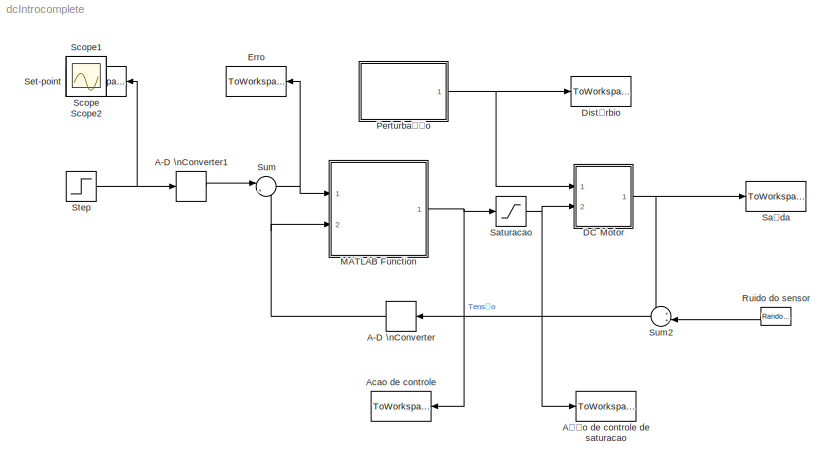
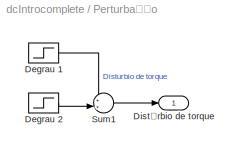
MODEL dcIntrocomplete
KIND model
CONFIG PreLoadFcn = % Motor Parameters\n\nJ=0.01;     %kg*m^2\nb=0.1;      %N*m/(rad/s)\nK=0.01;     %V/(rad/s)\nR=1;        %Ohm\nL=0.5;      %H
BLOCK [ZeroOrderHold] A-D \nConverter
  SID = 30
  SampleTime = 0.02
BLOCK [ZeroOrderHold] A-D \nConverter1
  SID = 41
  SampleTime = 0.02
BLOCK [ToWorkspace] Acao de controle
  FixptAsFi = on
  MaxDataPoints = inf
  Ports = [1]
  SID = 44
  SampleTime = -1
  Save2DSignal = 3-D array (concatenate along third dimension)
  SaveFormat = Structure With Time
  VariableName = u
BLOCK [ToWorkspace] Ação de controle de saturacao
  FixptAsFi = on
  MaxDataPoints = inf
  Ports = [1]
  SID = 38
  SampleTime = -1
  Save2DSignal = 3-D array (concatenate along third dimension)
  SaveFormat = Structure With Time
  VariableName = usat
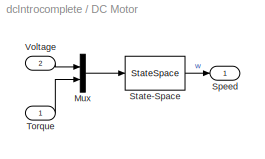
BLOCK [SubSystem] DC Motor
  Ports = [2, 1]
  RequestExecContextInheritance = off
  SID = 2
BLOCK [Mux] DC Motor/Mux
  DisplayOption = bar
  Inputs = 2
  Ports = [2, 1]
  SID = 5
BLOCK [Outport] DC Motor/Speed
  IconDisplay = Port number
  SID = 7
BLOCK [StateSpace] DC Motor/State-Space
  A = [-b/J K/J; -K/L -R/L]
  B = [0 -1/J; 1/L 0]
  C = [1 0]
  D = [0 0]
  Ports = [1, 1]
  SID = 6
  X0 = 0
BLOCK [Inport] DC Motor/Torque
  IconDisplay = Port number
  SID = 4
BLOCK [Inport] DC Motor/Voltage
  IconDisplay = Port number
  Port = 2
  SID = 3
BLOCK [ToWorkspace] Distúrbio
  FixptAsFi = on
  MaxDataPoints = inf
  Ports = [1]
  SID = 40
  SampleTime = -1
  Save2DSignal = 3-D array (concatenate along third dimension)
  SaveFormat = Structure With Time
  VariableName = d
BLOCK [ToWorkspace] Erro
  FixptAsFi = on
  MaxDataPoints = inf
  Ports = [1]
  SID = 39
  SampleTime = -1
  Save2DSignal = 3-D array (concatenate along third dimension)
  SaveFormat = Structure With Time
  VariableName = e
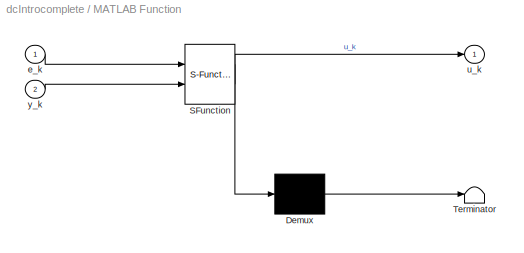
BLOCK [SubSystem] MATLAB Function
  ErrorFcn = Stateflow.Translate.translate
  PermitHierarchicalResolution = ExplicitOnly
  Ports = [2, 1]
  RequestExecContextInheritance = off
  SFBlockType = MATLAB Function
  SID = 34
  TreatAsAtomicUnit = on
BLOCK [Demux] MATLAB Function/ Demux 
  Outputs = 1
  Ports = [1, 1]
  SID = 34::17
BLOCK [S-Function] MATLAB Function/ SFunction 
  EnableBusSupport = on
  FunctionName = sf_sfun
  Parameters = params
  PortCounts = [2 2]
  Ports = [2, 2]
  SID = 34::16
  Tag = Stateflow S-Function dcIntrocomplete 2
BLOCK [Terminator] MATLAB Function/ Terminator 
  SID = 34::18
BLOCK [Inport] MATLAB Function/e_k
  IconDisplay = Port number
  SID = 34::1
BLOCK [Outport] MATLAB Function/u_k
  IconDisplay = Port number
  SID = 34::5
BLOCK [Inport] MATLAB Function/y_k
  IconDisplay = Port number
  Port = 2
  SID = 34::20
BLOCK [SubSystem] Perturbação
  Ports = [0, 1]
  RequestExecContextInheritance = off
  SID = 45
BLOCK [Step] Perturbação/Degrau 1
  After = dist_val
  SID = 12
  SampleTime = Ts
  Time = t0_dist
BLOCK [Step] Perturbação/Degrau 2
  After = -0.25
  SID = 32
  SampleTime = Ts
  Time = 25
BLOCK [Outport] Perturbação/Distúrbio de torque
  IconDisplay = Port number
  SID = 46
BLOCK [Sum] Perturbação/Sum1
  IconShape = round
  InputSameDT = off
  Inputs = ++|
  OutDataTypeStr = Inherit: Inherit via internal rule
  Ports = [2, 1]
  SID = 33
  SaturateOnIntegerOverflow = off
BLOCK [RandomNumber] Ruido do sensor
  SID = 9
  SampleTime = Ts
  Variance = variance
BLOCK [Saturate] Saturacao
  InputPortMap = u0
  LowerLimit = -sat
  Ports = [1, 1]
  SID = 43
  UpperLimit = sat
BLOCK [ToWorkspace] Saída
  FixptAsFi = on
  MaxDataPoints = inf
  Ports = [1]
  SID = 37
  SampleTime = -1
  Save2DSignal = 3-D array (concatenate along third dimension)
  SaveFormat = Structure With Time
  VariableName = y
BLOCK [Scope] Scope
  Floating = off
  IOType = viewer
  MaxDataPoints = 7500
  NumInputPorts = 1
  Ports = []
  SID = 15
  SampleTime = 0
  ZoomMode = yonly
BLOCK [Scope] Scope1
  Floating = off
  IOType = viewer
  LimitDataPoints = off
  MaxDataPoints = 7500
  NumInputPorts = 3
  Ports = []
  SID = 19
  SampleTime = 0
  SaveName = ScopeData2
  ShowLegends = on
  TimeRange = 10
  YMax = 3~60~0.3
  YMin = -3~-60~-0.1
BLOCK [Scope] Scope2
  Floating = off
  IOType = viewer
  MaxDataPoints = 7500
  NumInputPorts = 1
  Ports = []
  SID = 16
  SampleTime = 0
  SaveName = ScopeData1
  YMax = 50
  YMin = -50
BLOCK [ToWorkspace] Set-point
  FixptAsFi = on
  MaxDataPoints = inf
  Ports = [1]
  SID = 35
  SampleTime = -1
  Save2DSignal = 3-D array (concatenate along third dimension)
  SaveFormat = Structure With Time
  VariableName = w
BLOCK [Step] Step
  After = vel_estat
  SID = 24
  SampleTime = Ts
  Time = t0_vel
BLOCK [Sum] Sum
  IconShape = round
  InputSameDT = off
  Inputs = |+-
  OutDataTypeStr = Inherit: Inherit via internal rule
  Ports = [2, 1]
  SID = 13
  SaturateOnIntegerOverflow = off
BLOCK [Sum] Sum2
  IconShape = round
  InputSameDT = off
  Inputs = ++|
  OutDataTypeStr = Inherit: Inherit via internal rule
  Ports = [2, 1]
  SID = 28
  SaturateOnIntegerOverflow = off
LINE A-D \nConverter1:1 -> Sum:1
NET A-D \nConverter:1 -> MATLAB Function:2, Sum:2
LINE DC Motor/Mux:1 -> DC Motor/State-Space:1
LINE DC Motor/State-Space:1 -> DC Motor/Speed:1
LINE DC Motor/Torque:1 -> DC Motor/Mux:2
LINE DC Motor/Voltage:1 -> DC Motor/Mux:1
NET DC Motor:1 -> Saída:1, Sum2:1
LINE MATLAB Function/ Demux :1 -> MATLAB Function/ Terminator :1
LINE MATLAB Function/ SFunction :1 -> MATLAB Function/ Demux :1
LINE MATLAB Function/ SFunction :2 -> MATLAB Function/u_k:1
LINE MATLAB Function/e_k:1 -> MATLAB Function/ SFunction :1
LINE MATLAB Function/y_k:1 -> MATLAB Function/ SFunction :2
NET MATLAB Function:1 -> Acao de controle:1, Saturacao:1
LINE Perturbação/Degrau 1:1 -> Perturbação/Sum1:1
LINE Perturbação/Degrau 2:1 -> Perturbação/Sum1:2
LINE Perturbação/Sum1:1 -> Perturbação/Distúrbio de torque:1
NET Perturbação:1 -> DC Motor:1, Distúrbio:1
LINE Ruido do sensor:1 -> Sum2:2
NET Saturacao:1 -> Ação de controle de saturacao:1, DC Motor:2
NET Step:1 -> A-D \nConverter1:1, Set-point:1
LINE Sum2:1 -> A-D \nConverter:1
NET Sum:1 -> Erro:1, MATLAB Function:1
note: NET lines group one-source signal fan-out (src -> all destinations, sorted); 1:1 wires keep LINE
CHART MATLAB Function states=1 transitions=1
  STATE_LABEL 'eML_blk_kernel()'
